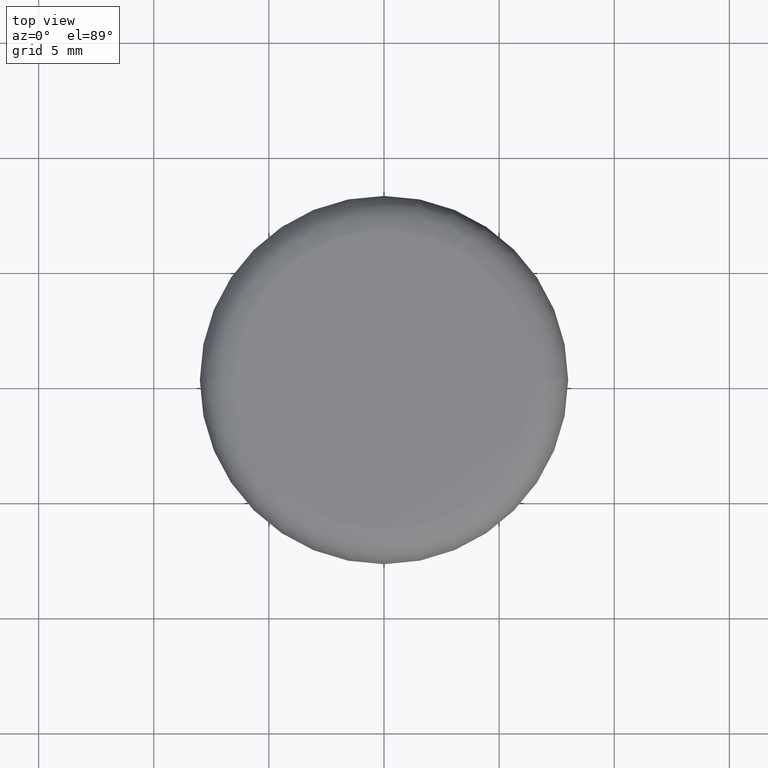
[diagram: clean part render]
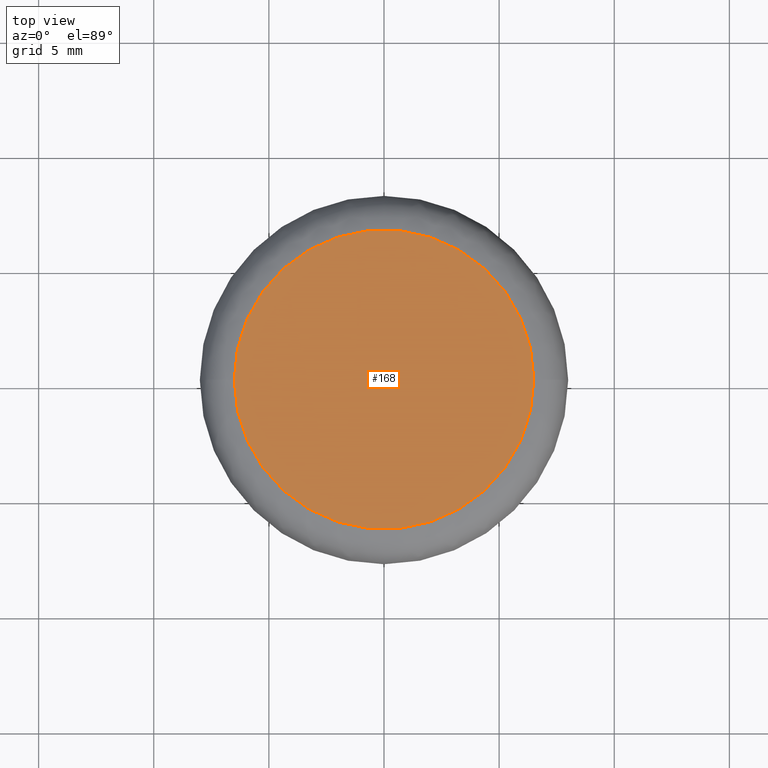
[diagram: same view with one face highlighted and labeled with its STEP entity id]
A machine part, top view. The second image highlights one B-rep face of the part: STEP entity #168.
In plain terms, the highlighted planar face has unit normal (0, 0, 1).
Its self-contained STEP definition (entity closure, byte-faithful):
#168=ADVANCED_FACE('',(#756),#755,.T.);
#755=PLANE('',#1419);
#756=FACE_OUTER_BOUND('',#1420,.T.);
#1416=CARTESIAN_POINT('',(-8.45429000000E+00,-1.35168552202E+01,0.00000000000E+00));
#1417=DIRECTION('',(0.00000000000E+00,0.00000000000E+00,1.00000000000E+00));
#1418=DIRECTION('',(1.00000000000E+00,0.00000000000E+00,0.00000000000E+00));
#1419=AXIS2_PLACEMENT_3D('',#1416,#1417,#1418);
#1420=EDGE_LOOP('',(#1956,#1957));
#1956=ORIENTED_EDGE('',*,*,#2202,.F.);
#1957=ORIENTED_EDGE('',*,*,#2203,.F.);
#2202=EDGE_CURVE('',#3246,#3247,#3248,.T.);
#2203=EDGE_CURVE('',#3247,#3246,#3254,.T.);
#3246=VERTEX_POINT('',#4216);
#3247=VERTEX_POINT('',#4217);
#3248=CIRCLE('',#4221,6.50330000000E+00);
#3254=CIRCLE('',#4225,6.50330000000E+00);
#4216=CARTESIAN_POINT('',(6.50330000000E+00,0.00000000000E+00,0.00000000000E+00));
#4217=CARTESIAN_POINT('',(-6.50330000000E+00,0.00000000000E+00,0.00000000000E+00));
#4218=CARTESIAN_POINT('',(0.00000000000E+00,0.00000000000E+00,0.00000000000E+00));
#4219=DIRECTION('',(-0.00000000000E+00,0.00000000000E+00,-1.00000000000E+00));
#4220=DIRECTION('',(-1.00000000000E+00,-1.22460635382E-16,0.00000000000E+00));
#4221=AXIS2_PLACEMENT_3D('',#4218,#4219,#4220);
#4222=CARTESIAN_POINT('',(0.00000000000E+00,0.00000000000E+00,0.00000000000E+00));
#4223=DIRECTION('',(-0.00000000000E+00,0.00000000000E+00,-1.00000000000E+00));
#4224=DIRECTION('',(-1.00000000000E+00,-1.22460635382E-16,0.00000000000E+00));
#4225=AXIS2_PLACEMENT_3D('',#4222,#4223,#4224);